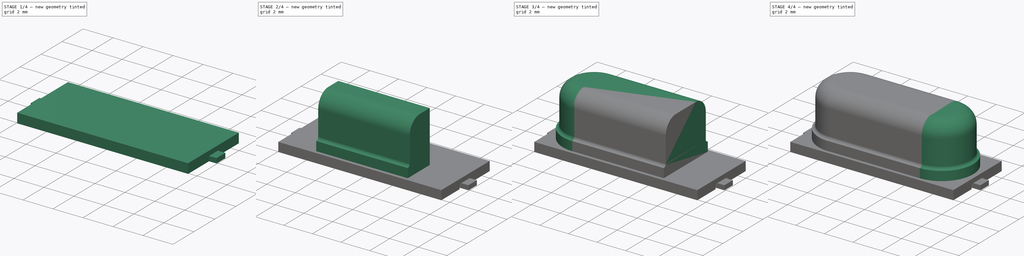
[diagram: build sequence overview — one tinted view per stage of 4, left to right]
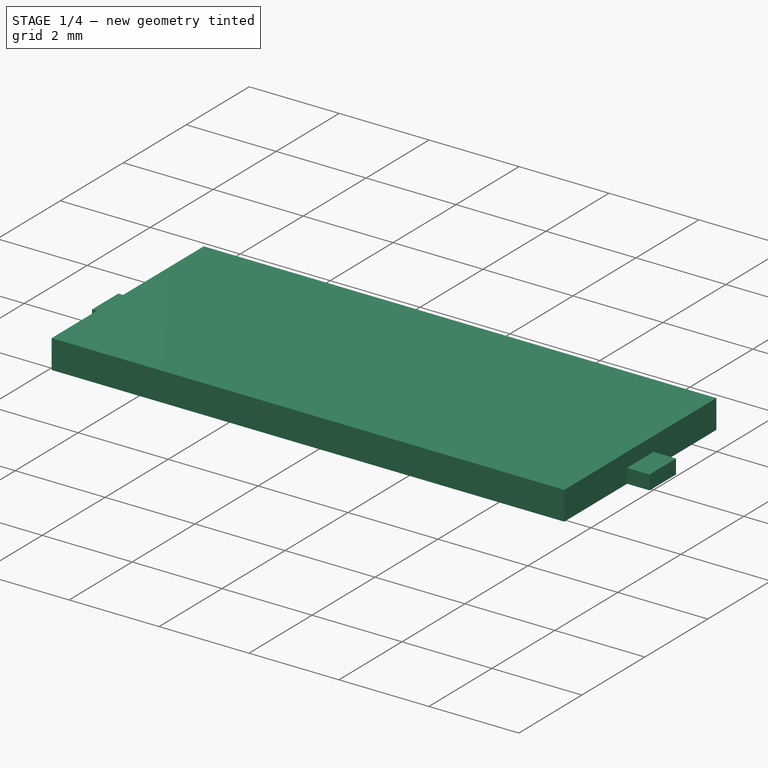
[diagram: stage 1 of 4 — iso view after this stage's code; geometry added in this stage tinted green]
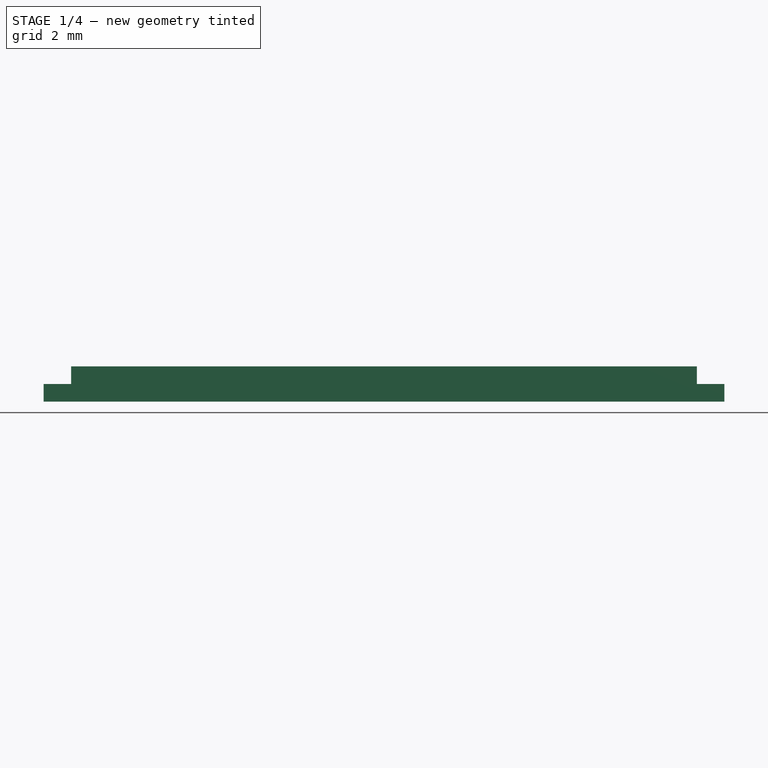
[diagram: stage 1 of 4 — front view after this stage's code; geometry added in this stage tinted green]
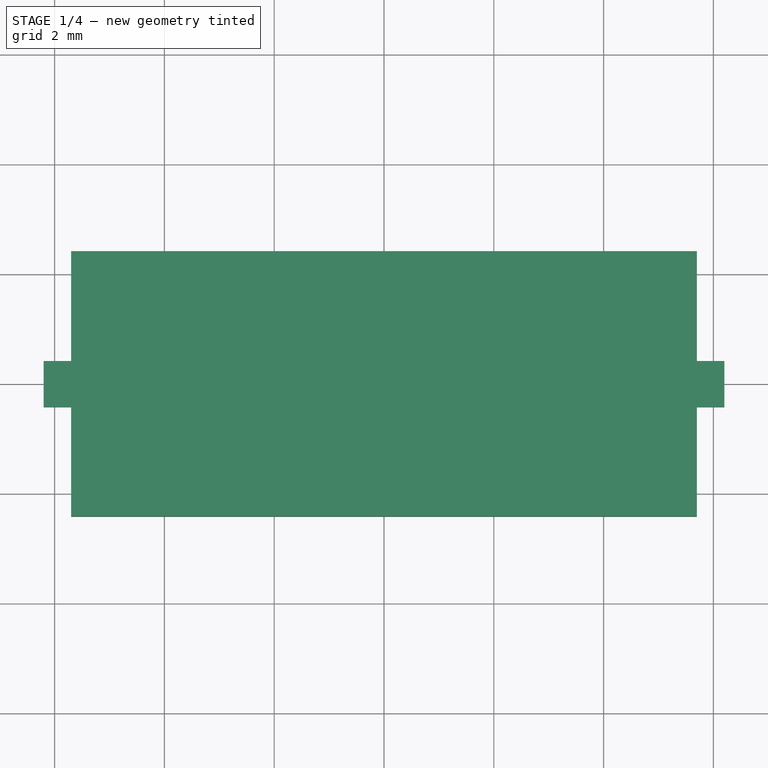
[diagram: stage 1 of 4 — top view after this stage's code; geometry added in this stage tinted green]
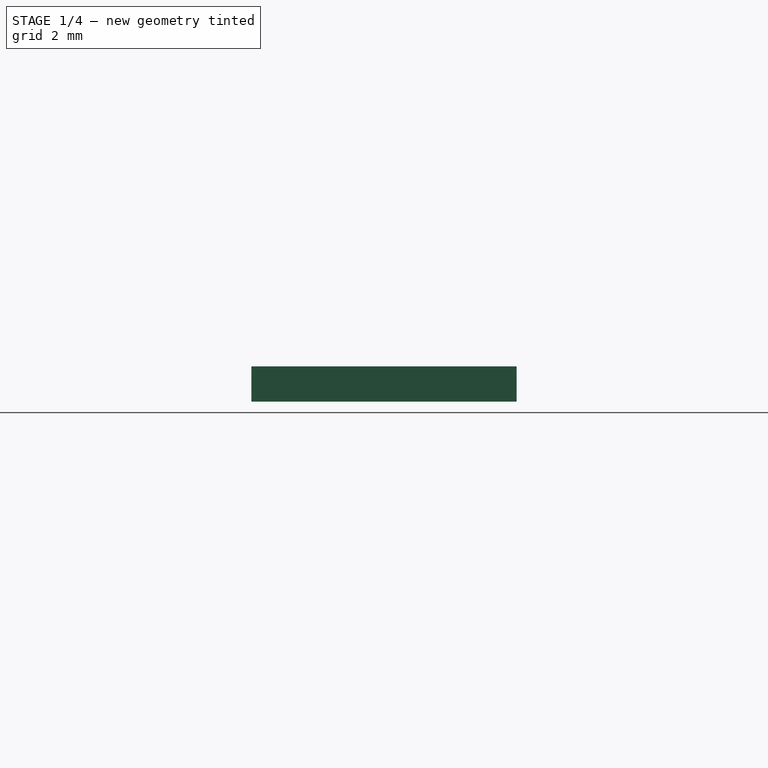
[diagram: stage 1 of 4 — right view after this stage's code; geometry added in this stage tinted green]
FCSTD DOCUMENT  (FreeCAD 0.14R3702 (Git))
Label: xtal-smd-10x4x3mm
License: CC-BY 3.0
LicenseURL: http://creativecommons.org/licenses/by/3.0/
objects: Sketcher::SketchObject×5, Part::FeaturePython×4, PartDesign::Pad×3, Part::MultiFuse×2, PartDesign::Revolution×1, Part::Mirroring×1, PartDesign::Pocket×1, App::DocumentObjectGroup×1, Part::Compound×1
note: 23 computed .brp shape members not serialized (recipe doc carries the construction recipe); baked Part::Feature solids carry a one-line shape summary decoded from their .brp

FEATURE [Sketcher::SketchObject] Sketch002  label="main-base-sketch"
  sketch-geometry (4):
    g0: LineSegment StartX=-5.7 StartY=2.415 StartZ=0 EndX=5.7 EndY=2.415 EndZ=0
    g1: LineSegment StartX=5.7 StartY=2.415 StartZ=0 EndX=5.7 EndY=-2.415 EndZ=0
    g2: LineSegment StartX=5.7 StartY=-2.415 StartZ=0 EndX=-5.7 EndY=-2.415 EndZ=0
    g3: LineSegment StartX=-5.7 StartY=-2.415 StartZ=0 EndX=-5.7 EndY=2.415 EndZ=0
  constraints (11):
    c: Coincident(g0,g1)
    c: Coincident(g1,g2)
    c: Coincident(g2,g3)
    c: Coincident(g3,g0)
    c: Horizontal(g0)
    c: Horizontal(g2)
    c: Vertical(g1)
    c: Vertical(g3)
    c: Symmetric(g0,g1,g-1)
    c: DistanceX(g2) = -11.4
    c: DistanceY(g1) = -4.83
FEATURE [PartDesign::Pad] Pad001  label="main-base"
  Length = 0.64
  Length2 = 100
  Sketch = -> Sketch002
  Type = 0
FEATURE [Sketcher::SketchObject] Sketch004
  sketch-geometry (8):
    g0: LineSegment StartX=-6.2 StartY=0.42 StartZ=0 EndX=-1.9 EndY=0.42 EndZ=0
    g1: LineSegment StartX=-1.9 StartY=0.42 StartZ=0 EndX=-1.9 EndY=-0.42 EndZ=0
    g2: LineSegment StartX=-1.9 StartY=-0.42 StartZ=0 EndX=-6.2 EndY=-0.42 EndZ=0
    g3: LineSegment StartX=-6.2 StartY=-0.42 StartZ=0 EndX=-6.2 EndY=0.42 EndZ=0
    g4: LineSegment StartX=1.9 StartY=0.42 StartZ=0 EndX=6.2 EndY=0.42 EndZ=0
    g5: LineSegment StartX=6.2 StartY=0.42 StartZ=0 EndX=6.2 EndY=-0.42 EndZ=0
    g6: LineSegment StartX=6.2 StartY=-0.42 StartZ=0 EndX=1.9 EndY=-0.42 EndZ=0
    g7: LineSegment StartX=1.9 StartY=-0.42 StartZ=0 EndX=1.9 EndY=0.42 EndZ=0
  constraints (23):
    c: Coincident(g0,g1)
    c: Coincident(g1,g2)
    c: Coincident(g2,g3)
    c: Coincident(g3,g0)
    c: Horizontal(g0)
    c: Horizontal(g2)
    c: Vertical(g1)
    c: Vertical(g3)
    c: Symmetric(g2,g0,g-1)
    c: DistanceX(g0,g0) = 4.3
    c: DistanceY(g1) = -0.84
    c: DistanceX(g-1,g1) = -1.9
    c: Coincident(g4,g5)
    c: Coincident(g5,g6)
    c: Coincident(g6,g7)
    c: Coincident(g7,g4)
    c: Horizontal(g4)
    c: Horizontal(g6)
    c: Vertical(g5)
    c: Vertical(g7)
    c: Symmetric(g1,g6,g-2)
    c: Symmetric(g4,g0,g-2)
    c: Symmetric(g4,g0,g-2)
FEATURE [PartDesign::Pad] Pad002  label="smd-pins"
  Length = 0.32
  Length2 = 100
  Sketch = -> Sketch004
  Type = 0
FEATURE [Part::FeaturePython] Clone003  label="Clone of smd-pins"  # Draft clone (typed FeaturePython)
  Objects = -> [Pad002]
  Scale = (1,1,1)
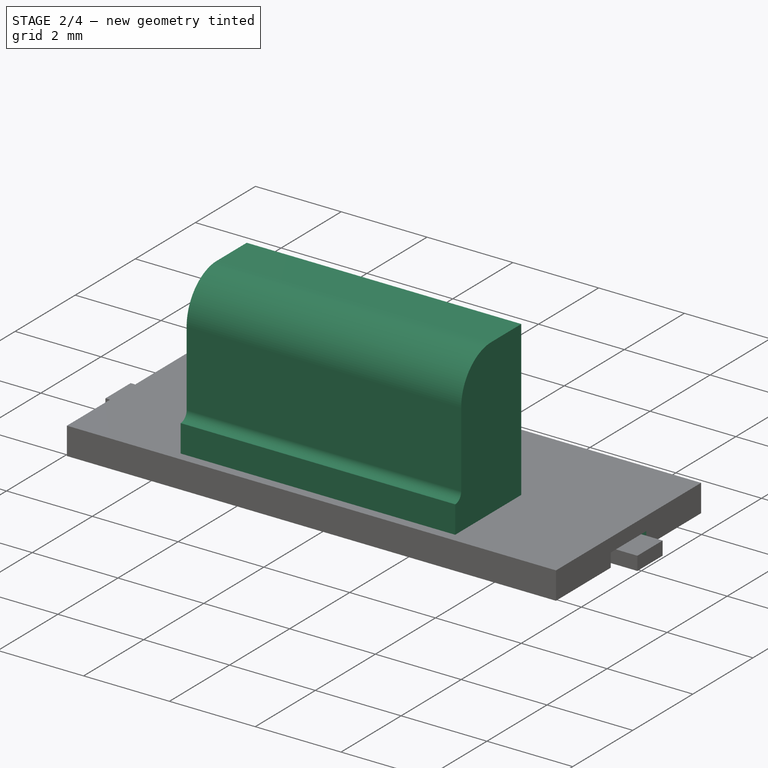
[diagram: stage 2 of 4 — iso view after this stage's code; geometry added in this stage tinted green]
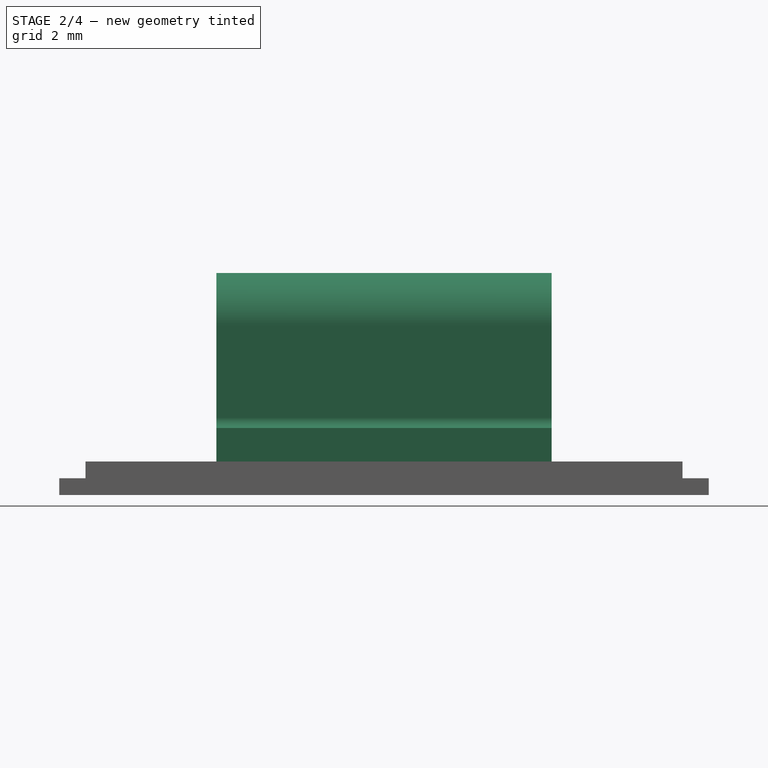
[diagram: stage 2 of 4 — front view after this stage's code; geometry added in this stage tinted green]
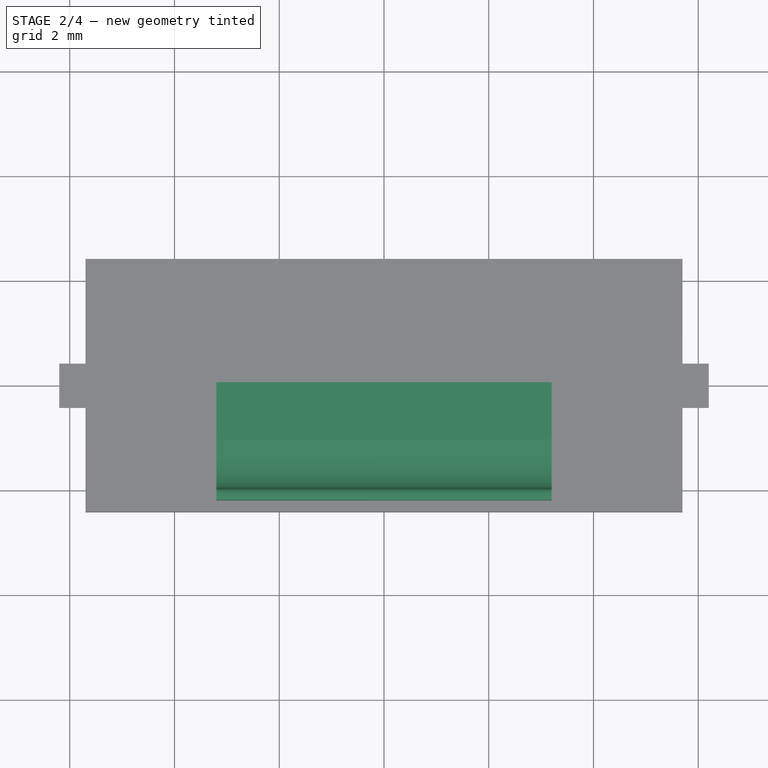
[diagram: stage 2 of 4 — top view after this stage's code; geometry added in this stage tinted green]
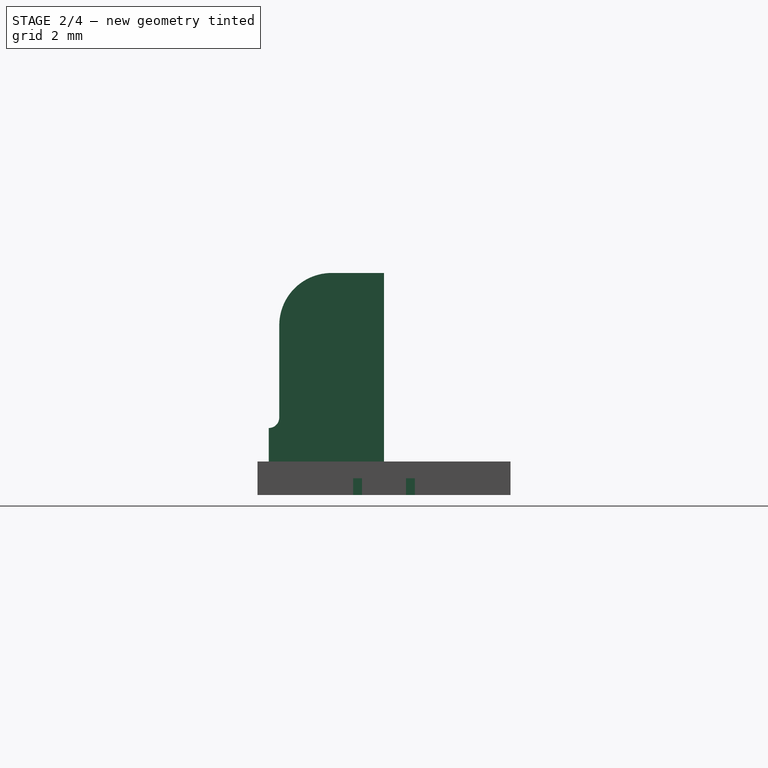
[diagram: stage 2 of 4 — right view after this stage's code; geometry added in this stage tinted green]
FEATURE [Sketcher::SketchObject] Sketch001  label="xtal-side-sketch001"
  Placement = pos=(0,0,0) rot=(0.57735,0.57735,0.57735;2.0944rad)
  sketch-geometry (7):
    g0: LineSegment StartX=0 StartY=4.24 StartZ=0 EndX=-1 EndY=4.24 EndZ=0
    g1: LineSegment StartX=-2 StartY=3.24 StartZ=0 EndX=-2 EndY=1.48 EndZ=0
    g2: LineSegment StartX=-2.2 StartY=1.28 StartZ=0 EndX=-2.2 EndY=0.64 EndZ=0
    g3: LineSegment StartX=0 StartY=4.24 StartZ=0 EndX=0 EndY=0.64 EndZ=0
    g4: ArcOfCircle CenterX=-1 CenterY=3.24 CenterZ=0 NormalX=0 NormalY=0 NormalZ=1 Radius=1 StartAngle=1.5708 EndAngle=3.14159
    g5: ArcOfCircle CenterX=-2.2 CenterY=1.48 CenterZ=0 NormalX=0 NormalY=0 NormalZ=1 Radius=0.2 StartAngle=4.71239 EndAngle=6.28319
    g6: LineSegment StartX=-2.2 StartY=0.64 StartZ=0 EndX=0 EndY=0.64 EndZ=0
  constraints (20):
    c: Horizontal(g0)
    c: Vertical(g1)
    c: Vertical(g2)
    c: PointOnObject(g0,g-2)
    c: Vertical(g3)
    c: Coincident(g3,g0)
    c: Tangent(g0,g4)
    c: Tangent(g1,g4)
    c: Tangent(g1,g5)
    c: Radius(g4) = 1
    c: DistanceX(g0) = -1
    c: DistanceY(g3) = -3.6
    c: Horizontal(g6)
    c: Coincident(g6,g3)
    c: Coincident(g6,g2)
    c: DistanceY(g-1,g3) = 0.64
    c: DistanceY(g1) = -1.76
    c: Coincident(g2,g5)
    c: Perpendicular(g2,g5)
    c: Radius(g5) = 0.2
FEATURE [PartDesign::Pad] Pad
  Length = 6.4
  Length2 = 100
  Midplane = true
  Placement = pos=(0,0,0) rot=(0.57735,0.57735,0.57735;2.0944rad)
  Sketch = -> Sketch001
  Type = 0
FEATURE [Sketcher::SketchObject] Sketch003  label="base-cutout-1-sketch"
  ExternalGeometry = -> [Pad001]
  Placement = pos=(0,0,0) rot=(1,0,0;3.14159rad)
  Support = -> Pad001 [Face5]
  sketch-geometry (8):
    g0: LineSegment StartX=-5.7 StartY=0.59 StartZ=0 EndX=-1.7 EndY=0.59 EndZ=0
    g1: LineSegment StartX=-1.7 StartY=0.59 StartZ=0 EndX=-1.7 EndY=-0.59 EndZ=0
    g2: LineSegment StartX=-1.7 StartY=-0.59 StartZ=0 EndX=-5.7 EndY=-0.59 EndZ=0
    g3: LineSegment StartX=-5.7 StartY=-0.59 StartZ=0 EndX=-5.7 EndY=0.59 EndZ=0
    g4: LineSegment StartX=5.7 StartY=0.59 StartZ=0 EndX=1.7 EndY=0.59 EndZ=0
    g5: LineSegment StartX=1.7 StartY=0.59 StartZ=0 EndX=1.7 EndY=-0.59 EndZ=0
    g6: LineSegment StartX=1.7 StartY=-0.59 StartZ=0 EndX=5.7 EndY=-0.59 EndZ=0
    g7: LineSegment StartX=5.7 StartY=-0.59 StartZ=0 EndX=5.7 EndY=0.59 EndZ=0
  constraints (22):
    c: Coincident(g0,g1)
    c: Coincident(g1,g2)
    c: Coincident(g2,g3)
    c: Coincident(g3,g0)
    c: Horizontal(g0)
    c: Horizontal(g2)
    c: Vertical(g1)
    c: Vertical(g3)
    c: PointOnObject(g0,g-3)
    c: DistanceX(g0) = 4
    c: DistanceY(g1) = -1.18
    c: Coincident(g4,g5)
    c: Coincident(g5,g6)
    c: Coincident(g6,g7)
    c: Coincident(g7,g4)
    c: Horizontal(g4)
    c: Horizontal(g6)
    c: Vertical(g7)
    c: Symmetric(g4,g0,g-2)
    c: Symmetric(g4,g5,g-1)
    c: Symmetric(g5,g1,g-2)
    c: Symmetric(g4,g0,g-2)
FEATURE [PartDesign::Pocket] Pocket  label="base-cutout-1"
  Length = 0.32
  Sketch = -> Sketch003
  Type = 0
FEATURE [Part::FeaturePython] Clone002  label="Clone of base-cutout-1"  # Draft clone (typed FeaturePython)
  Objects = -> [Pocket]
  Scale = (1,1,1)
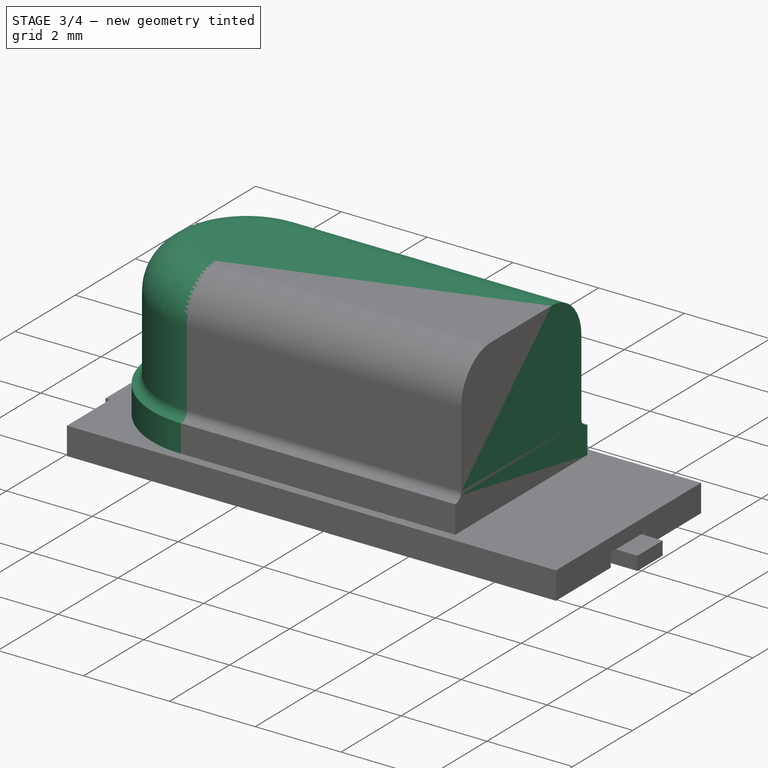
[diagram: stage 3 of 4 — iso view after this stage's code; geometry added in this stage tinted green]
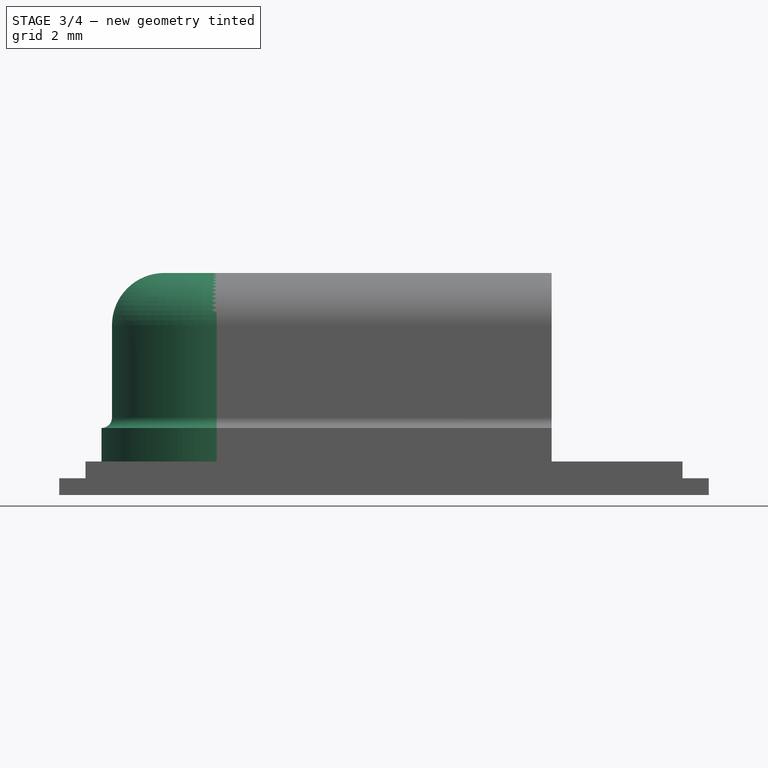
[diagram: stage 3 of 4 — front view after this stage's code; geometry added in this stage tinted green]
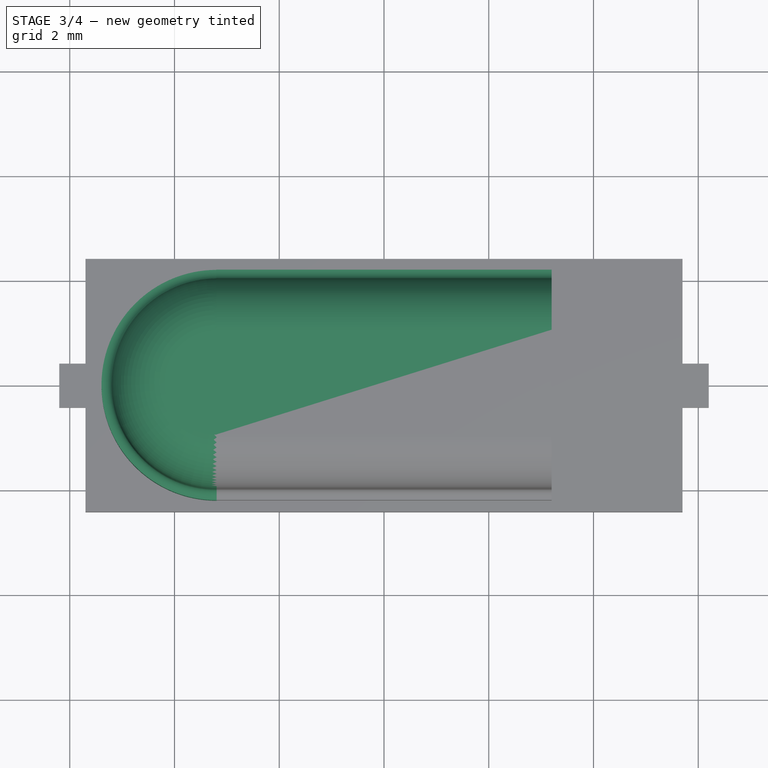
[diagram: stage 3 of 4 — top view after this stage's code; geometry added in this stage tinted green]
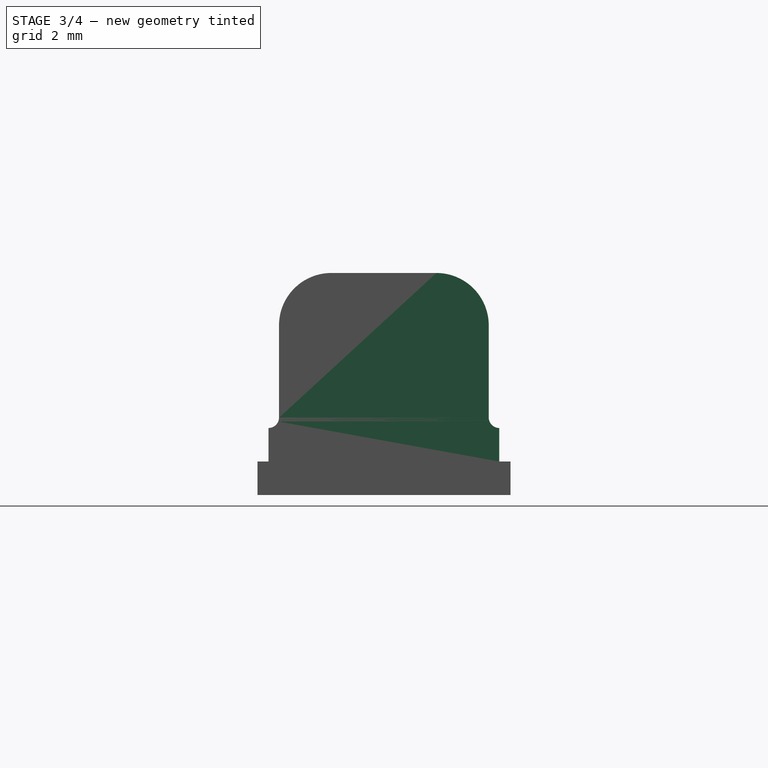
[diagram: stage 3 of 4 — right view after this stage's code; geometry added in this stage tinted green]
FEATURE [Sketcher::SketchObject] Sketch  label="xtal-side-sketch"
  Placement = pos=(3.195,0.005,0) rot=(0.57735,0.57735,0.57735;2.0944rad)
  sketch-geometry (7):
    g0: LineSegment StartX=0 StartY=4.24 StartZ=0 EndX=-1 EndY=4.24 EndZ=0
    g1: LineSegment StartX=-2 StartY=3.24 StartZ=0 EndX=-2 EndY=1.48 EndZ=0
    g2: LineSegment StartX=-2.2 StartY=1.28 StartZ=0 EndX=-2.2 EndY=0.64 EndZ=0
    g3: LineSegment StartX=0 StartY=4.24 StartZ=0 EndX=0 EndY=0.64 EndZ=0
    g4: ArcOfCircle CenterX=-1 CenterY=3.24 CenterZ=0 NormalX=0 NormalY=0 NormalZ=1 Radius=1 StartAngle=1.5708 EndAngle=3.14159
    g5: ArcOfCircle CenterX=-2.2 CenterY=1.48 CenterZ=0 NormalX=0 NormalY=0 NormalZ=1 Radius=0.2 StartAngle=4.71239 EndAngle=6.28319
    g6: LineSegment StartX=-2.2 StartY=0.64 StartZ=0 EndX=0 EndY=0.64 EndZ=0
  constraints (20):
    c: Horizontal(g0)
    c: Vertical(g1)
    c: Vertical(g2)
    c: PointOnObject(g0,g-2)
    c: Vertical(g3)
    c: Coincident(g3,g0)
    c: Tangent(g0,g4)
    c: Tangent(g1,g4)
    c: Tangent(g1,g5)
    c: Radius(g4) = 1
    c: DistanceX(g0) = -1
    c: DistanceY(g3) = -3.6
    c: Horizontal(g6)
    c: Coincident(g6,g3)
    c: Coincident(g6,g2)
    c: DistanceY(g-1,g3) = 0.64
    c: DistanceY(g1) = -1.76
    c: Coincident(g2,g5)
    c: Perpendicular(g2,g5)
    c: Radius(g5) = 0.2
FEATURE [PartDesign::Revolution] Revolution001  label="xtal-side001"
  Angle = 180
  Axis = (0,0,1)
  Base = (3.195,0.005,0)
  Placement = pos=(3.195,0.005,0) rot=(0.57735,0.57735,0.57735;2.0944rad)
  ReferenceAxis = -> Sketch [V_Axis]
  Sketch = -> Sketch
FEATURE [Part::FeaturePython] Clone  label="xtal-side-2"  # Draft clone (typed FeaturePython)
  Objects = -> [Revolution001]
  Placement = pos=(-3.195,-0.005,0) rot=(-0.57735,0.57735,0.57735;4.18879rad)
  Scale = (1,1,1)
FEATURE [Part::Mirroring] Part__Mirroring  label="Pad (Mirror #1)"
  Base = (0,0,0)
  Normal = (0,1,0)
  Source = -> Pad
FEATURE [Part::MultiFuse] Fusion
  Shapes = -> [Part__Mirroring,Pad]
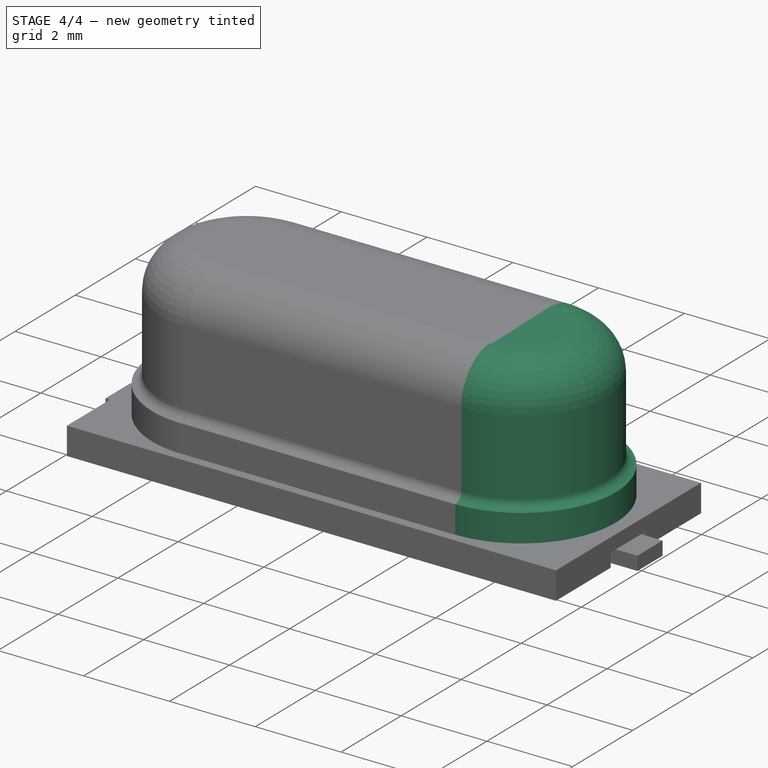
[diagram: stage 4 of 4 — iso view after this stage's code; geometry added in this stage tinted green]
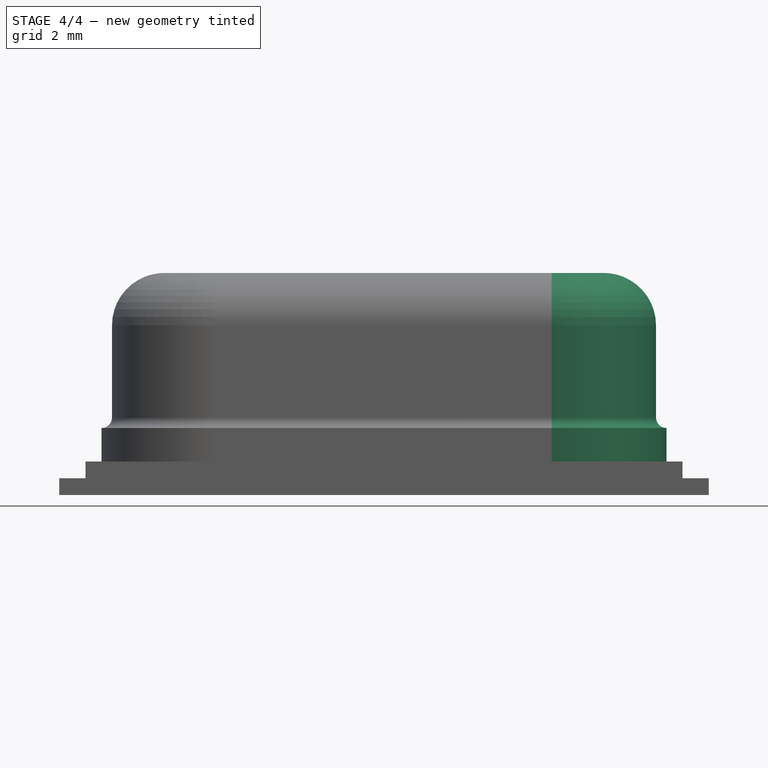
[diagram: stage 4 of 4 — front view after this stage's code; geometry added in this stage tinted green]
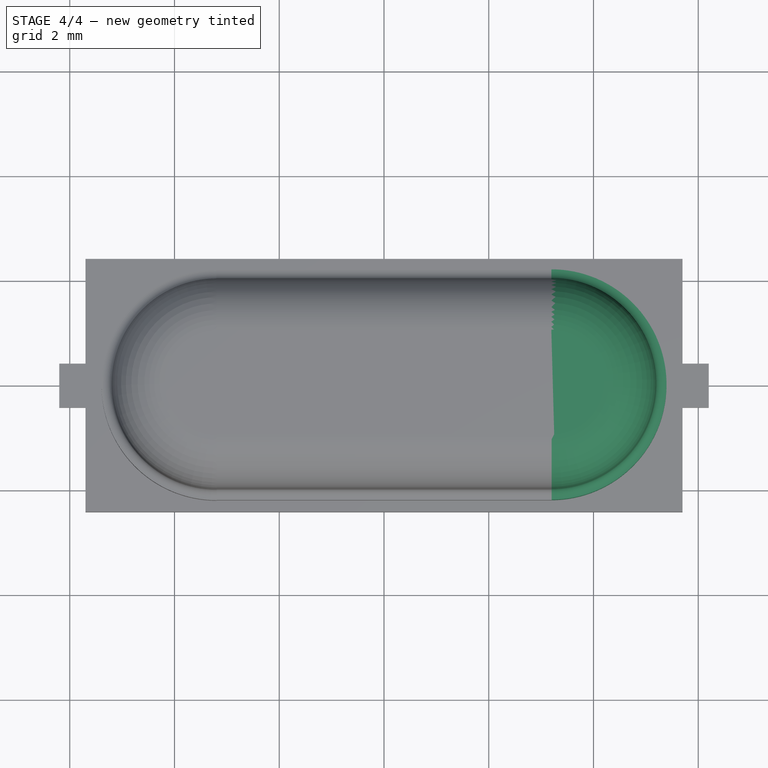
[diagram: stage 4 of 4 — top view after this stage's code; geometry added in this stage tinted green]
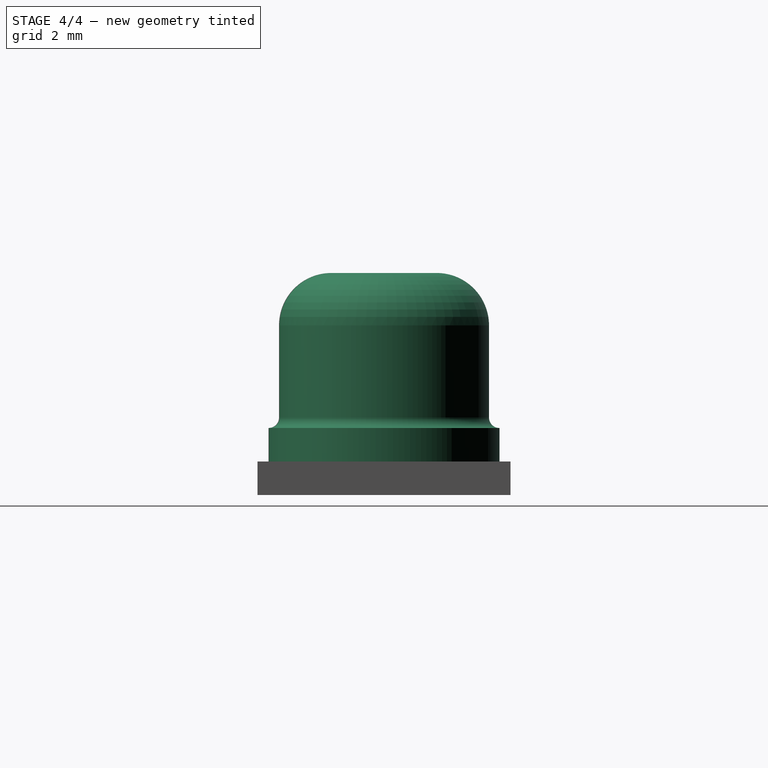
[diagram: stage 4 of 4 — right view after this stage's code; geometry added in this stage tinted green]
FEATURE [Part::MultiFuse] Fusion001  label="xtal-body"
  Shapes = -> [Fusion,Clone,Revolution001]
FEATURE [App::DocumentObjectGroup] Group  label="xtal-src"
  Group = -> [Fusion001,Pad001,Pocket,Pad002]
FEATURE [Part::FeaturePython] Clone001  label="Clone of xtal-body"  # Draft clone (typed FeaturePython)
  Objects = -> [Fusion001]
  Scale = (1,1,1)
FEATURE [Part::Compound] Compound  label="xtal-smd-10x4x3mm"
  Links = -> [Clone001,Clone002,Clone003]
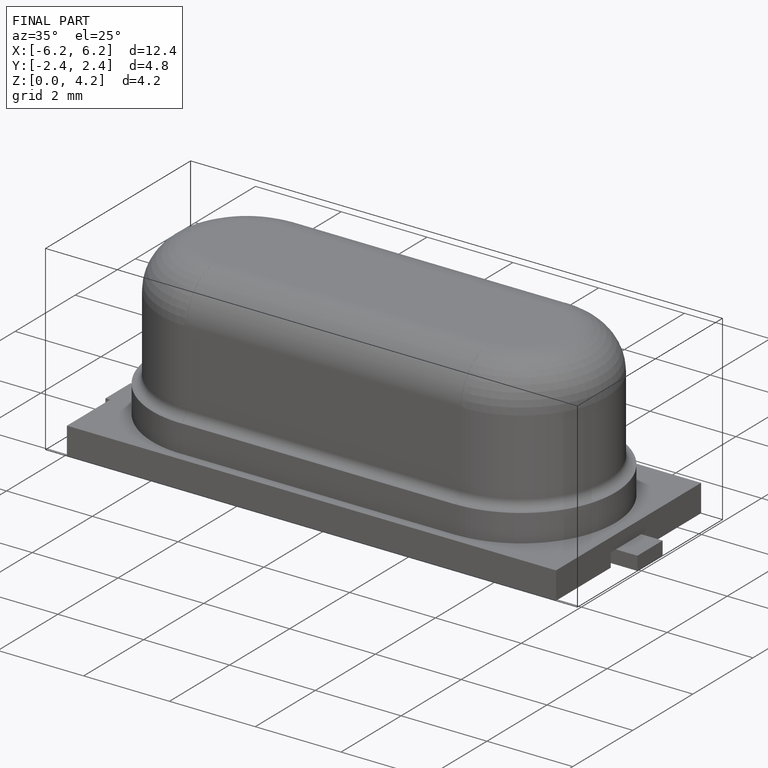
[diagram: finished part — iso view with bounding-box wireframe]
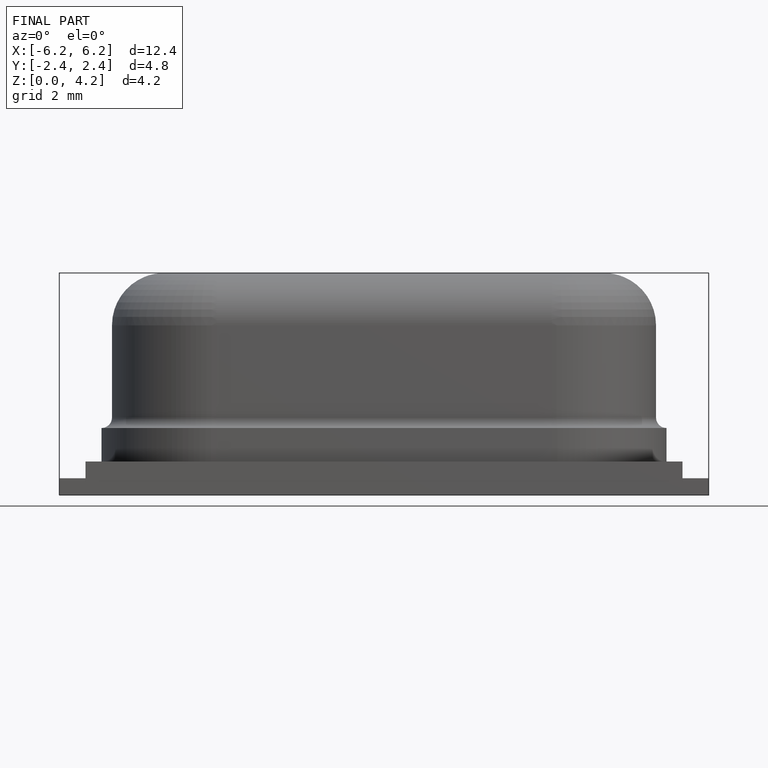
[diagram: finished part — front view with bounding-box wireframe]
